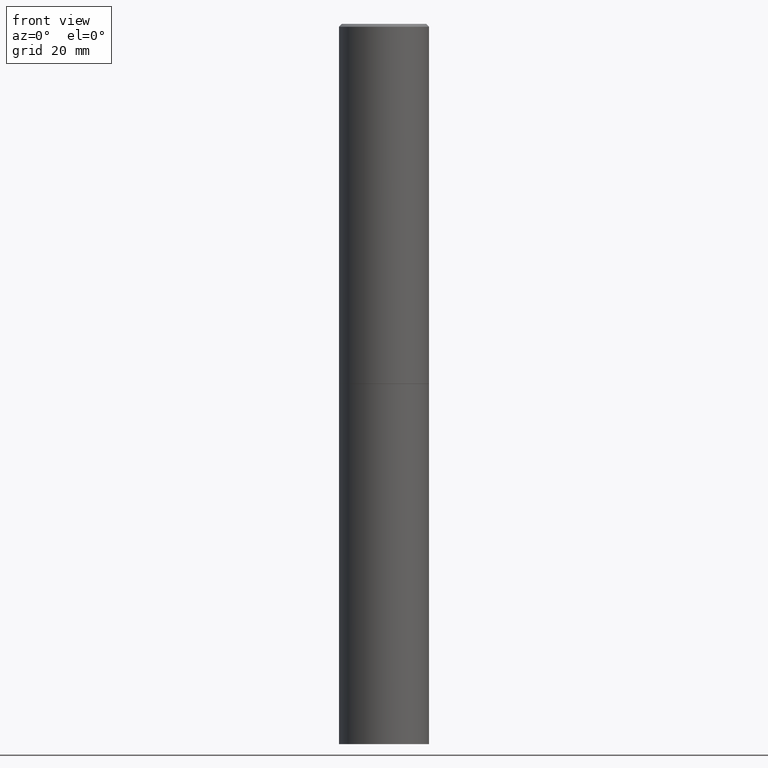
[diagram: clean part render]
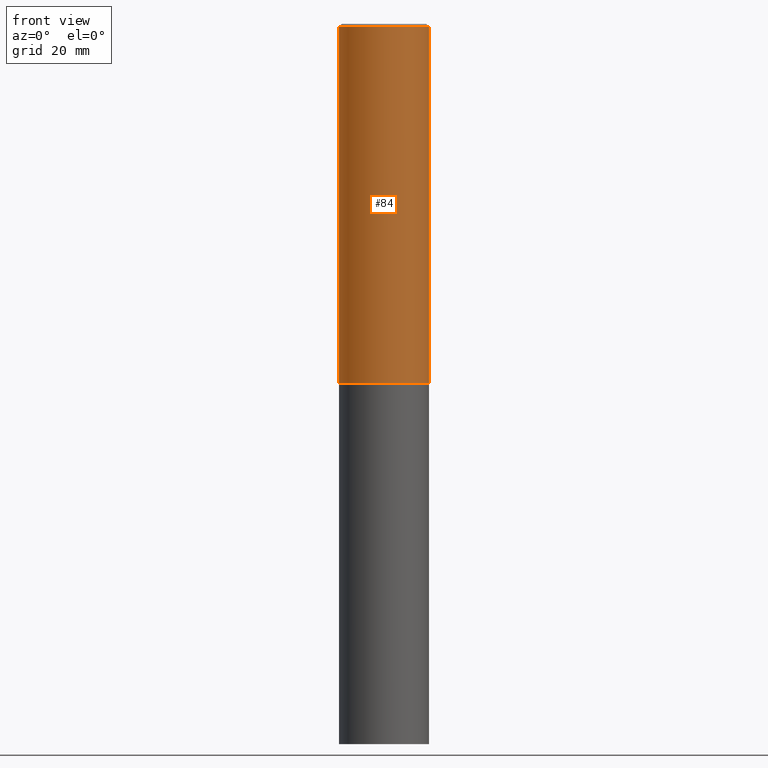
[diagram: same view with one face highlighted and labeled with its STEP entity id]
A machine part, front view. The second image highlights one B-rep face of the part: STEP entity #84.
In plain terms, the highlighted cylindrical surface (partial cylindrical patch) has radius 7.9375 mm, axis along (-0, 0, 1).
Its self-contained STEP definition (entity closure, byte-faithful):
#14 = CARTESIAN_POINT ( 'NONE',  ( 0.3125000000000000000, -1.090738770254598186E-14, -2.499000000000000998 ) ) ;
#27 = ORIENTED_EDGE ( 'NONE', *, *, #125, .F. ) ;
#28 = ORIENTED_EDGE ( 'NONE', *, *, #338, .T. ) ;
#39 = EDGE_CURVE ( 'NONE', #197, #150, #91, .T. ) ;
#55 = CARTESIAN_POINT ( 'NONE',  ( -0.3125000000000000000, -2.177074697022629142E-15, -2.499000000000000998 ) ) ;
#83 = DIRECTION ( 'NONE',  ( 1.000000000000000000, -6.982962677686265133E-15, 0.000000000000000000 ) ) ;
#84 = ADVANCED_FACE ( 'NONE', ( #192 ), #134, .T. ) ;
#88 = DIRECTION ( 'NONE',  ( -2.445468806185136877E-29, 3.491481338843145188E-15, 1.000000000000000000 ) ) ;
#91 = CIRCLE ( 'NONE', #233, 0.3124999999999997224 ) ;
#111 = CARTESIAN_POINT ( 'NONE',  ( 6.111226546656659252E-29, -8.725211865769023513E-15, -2.499000000000000998 ) ) ;
#116 = CARTESIAN_POINT ( 'NONE',  ( -0.3124999999999997224, 2.112346210000093471E-15, -0.02000000000000004552 ) ) ;
#125 = EDGE_CURVE ( 'NONE', #211, #197, #136, .T. ) ;
#128 = VERTEX_POINT ( 'NONE', #14 ) ;
#134 = CYLINDRICAL_SURFACE ( 'NONE', #331, 0.3124999999999998890 ) ;
#136 = LINE ( 'NONE', #249, #151 ) ;
#144 = AXIS2_PLACEMENT_3D ( 'NONE', #111, #310, #83 ) ;
#150 = VERTEX_POINT ( 'NONE', #355 ) ;
#151 = VECTOR ( 'NONE', #299, 39.37007874015748143 ) ;
#175 = LINE ( 'NONE', #225, #215 ) ;
#187 = CARTESIAN_POINT ( 'NONE',  ( 4.890937612370284544E-31, -6.982962677686307633E-17, -0.02000000000000004552 ) ) ;
#192 = FACE_OUTER_BOUND ( 'NONE', #351, .T. ) ;
#197 = VERTEX_POINT ( 'NONE', #116 ) ;
#205 = ORIENTED_EDGE ( 'NONE', *, *, #39, .F. ) ;
#208 = EDGE_CURVE ( 'NONE', #128, #150, #175, .T. ) ;
#211 = VERTEX_POINT ( 'NONE', #55 ) ;
#215 = VECTOR ( 'NONE', #88, 39.37007874015748143 ) ;
#217 = DIRECTION ( 'NONE',  ( -2.445468806185136597E-29, 3.491481338843145583E-15, 1.000000000000000000 ) ) ;
#219 = CARTESIAN_POINT ( 'NONE',  ( 0.000000000000000000, 0.000000000000000000, 0.000000000000000000 ) ) ;
#220 = DIRECTION ( 'NONE',  ( -2.445468806185136597E-29, 3.491481338843145583E-15, 1.000000000000000000 ) ) ;
#225 = CARTESIAN_POINT ( 'NONE',  ( 0.3124999999999998890, -2.182175836776957558E-15, 1.523805242436229235E-29 ) ) ;
#233 = AXIS2_PLACEMENT_3D ( 'NONE', #187, #220, #251 ) ;
#249 = CARTESIAN_POINT ( 'NONE',  ( -0.3124999999999998890, 2.220446049250312292E-15, -1.537167215704657391E-29 ) ) ;
#251 = DIRECTION ( 'NONE',  ( 1.000000000000000000, -6.982962677686266711E-15, 0.000000000000000000 ) ) ;
#289 = CIRCLE ( 'NONE', #144, 0.3125000000000000000 ) ;
#299 = DIRECTION ( 'NONE',  ( -2.445468806185136877E-29, 3.491481338843145188E-15, 1.000000000000000000 ) ) ;
#310 = DIRECTION ( 'NONE',  ( -2.445468806185136597E-29, 3.491481338843145583E-15, 1.000000000000000000 ) ) ;
#331 = AXIS2_PLACEMENT_3D ( 'NONE', #219, #217, #359 ) ;
#338 = EDGE_CURVE ( 'NONE', #211, #128, #289, .T. ) ;
#345 = ORIENTED_EDGE ( 'NONE', *, *, #208, .T. ) ;
#351 = EDGE_LOOP ( 'NONE', ( #27, #28, #345, #205 ) ) ;
#355 = CARTESIAN_POINT ( 'NONE',  ( 0.3124999999999997224, -2.213735251080464939E-15, -0.02000000000000004552 ) ) ;
#359 = DIRECTION ( 'NONE',  ( 1.000000000000000000, -6.982962677686266711E-15, 4.876176775795935232E-29 ) ) ;